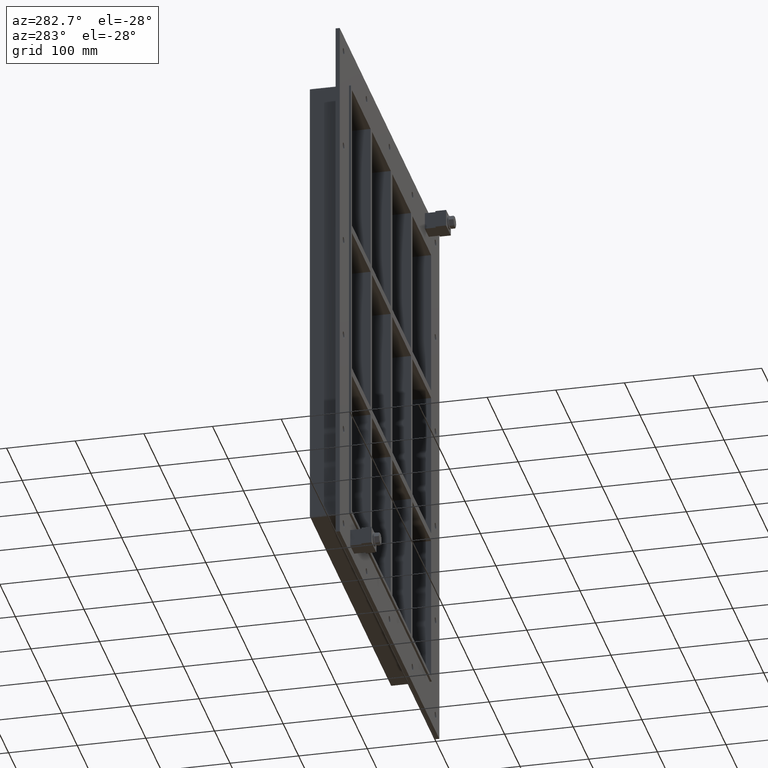
[diagram: clean part render]
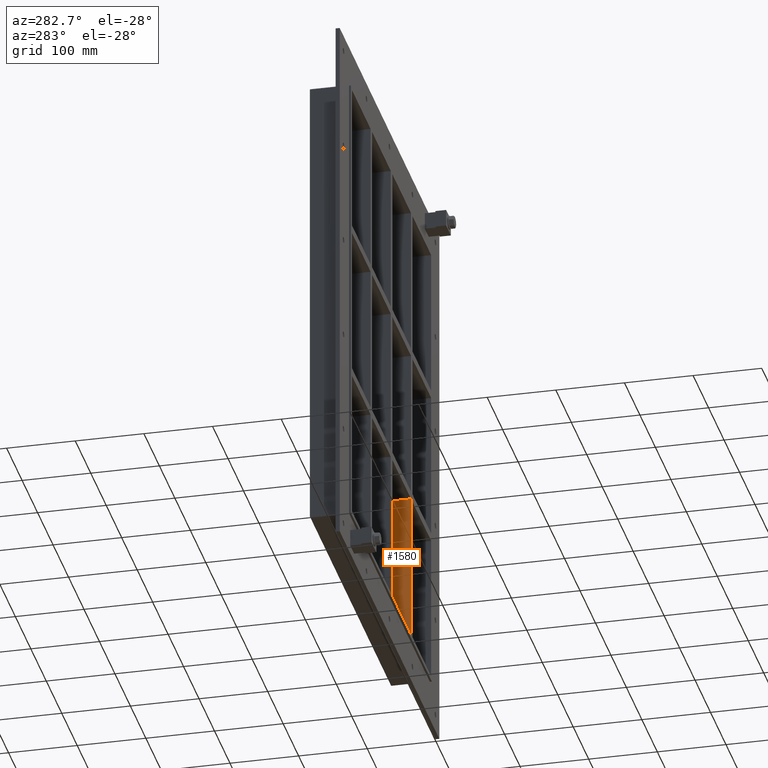
[diagram: same view with one face highlighted and labeled with its STEP entity id]
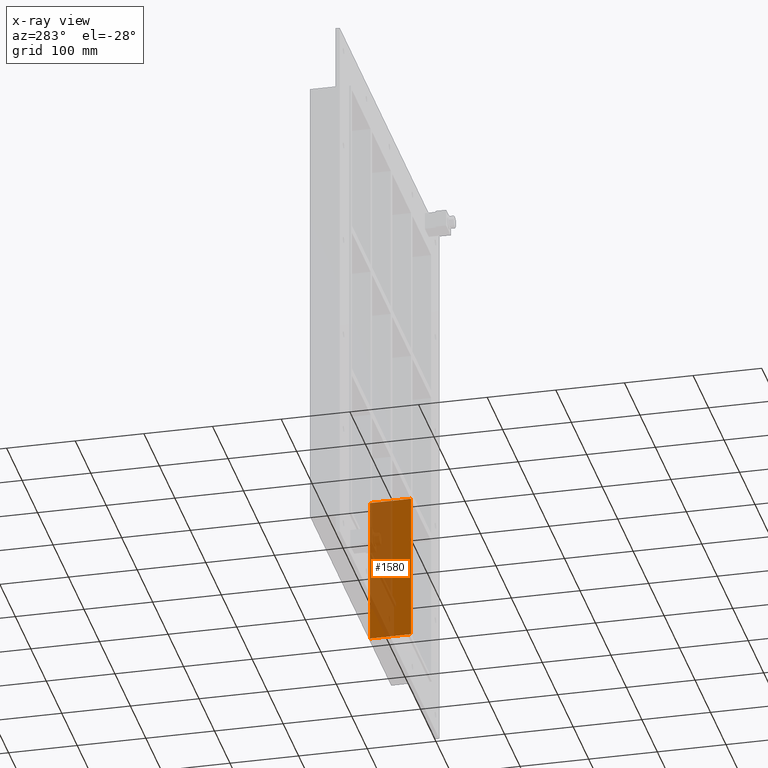
[diagram: x-ray of the same camera — body ghosted, the highlighted face saturated]
A machine part, auxiliary view. The second image highlights one B-rep face of the part: STEP entity #1580.
The next image is the same camera in x-ray: the body ghosted, the highlighted face saturated — about 51% of this face is hidden behind the body in this view.
In plain terms, the highlighted planar face has unit normal (-1, 0, 0).
Its self-contained STEP definition (entity closure, byte-faithful):
#1446=CARTESIAN_POINT('',(125.49999999999976,57.0,-339.00000000000006));
#1447=VERTEX_POINT('',#1446);
#1448=CARTESIAN_POINT('',(125.49999999999972,57.0,-121.00000000001114));
#1449=VERTEX_POINT('',#1448);
#1450=CARTESIAN_POINT('',(125.49999999999976,57.0,-339.00000000000006));
#1451=DIRECTION('',(0.0,0.0,1.0));
#1452=VECTOR('',#1451,217.99999999998892);
#1453=LINE('',#1450,#1452);
#1454=EDGE_CURVE('',#1447,#1449,#1453,.T.);
#1550=CARTESIAN_POINT('',(125.49999999999976,-3.0,-339.00000000000006));
#1551=DIRECTION('',(-1.0,0.0,0.0));
#1552=DIRECTION('',(0.0,0.0,1.0));
#1553=AXIS2_PLACEMENT_3D('',#1550,#1551,#1552);
#1554=PLANE('',#1553);
#1555=CARTESIAN_POINT('',(125.49999999999972,-3.0,-121.00000000001114));
#1556=VERTEX_POINT('',#1555);
#1557=CARTESIAN_POINT('',(125.49999999999972,57.0,-121.00000000001116));
#1558=DIRECTION('',(0.0,-1.0,0.0));
#1559=VECTOR('',#1558,60.0);
#1560=LINE('',#1557,#1559);
#1561=EDGE_CURVE('',#1449,#1556,#1560,.T.);
#1562=ORIENTED_EDGE('',*,*,#1561,.F.);
#1563=ORIENTED_EDGE('',*,*,#1454,.F.);
#1564=CARTESIAN_POINT('',(125.49999999999976,-3.0,-339.00000000000006));
#1565=VERTEX_POINT('',#1564);
#1566=CARTESIAN_POINT('',(125.49999999999976,-3.0,-339.00000000000006));
#1567=DIRECTION('',(0.0,1.0,0.0));
#1568=VECTOR('',#1567,60.000000000000007);
#1569=LINE('',#1566,#1568);
#1570=EDGE_CURVE('',#1565,#1447,#1569,.T.);
#1571=ORIENTED_EDGE('',*,*,#1570,.F.);
#1572=CARTESIAN_POINT('',(125.49999999999976,-3.0,-339.00000000000006));
#1573=DIRECTION('',(0.0,0.0,1.0));
#1574=VECTOR('',#1573,217.99999999998892);
#1575=LINE('',#1572,#1574);
#1576=EDGE_CURVE('',#1565,#1556,#1575,.T.);
#1577=ORIENTED_EDGE('',*,*,#1576,.T.);
#1578=EDGE_LOOP('',(#1562,#1563,#1571,#1577));
#1579=FACE_OUTER_BOUND('',#1578,.T.);
#1580=ADVANCED_FACE('',(#1579),#1554,.T.);